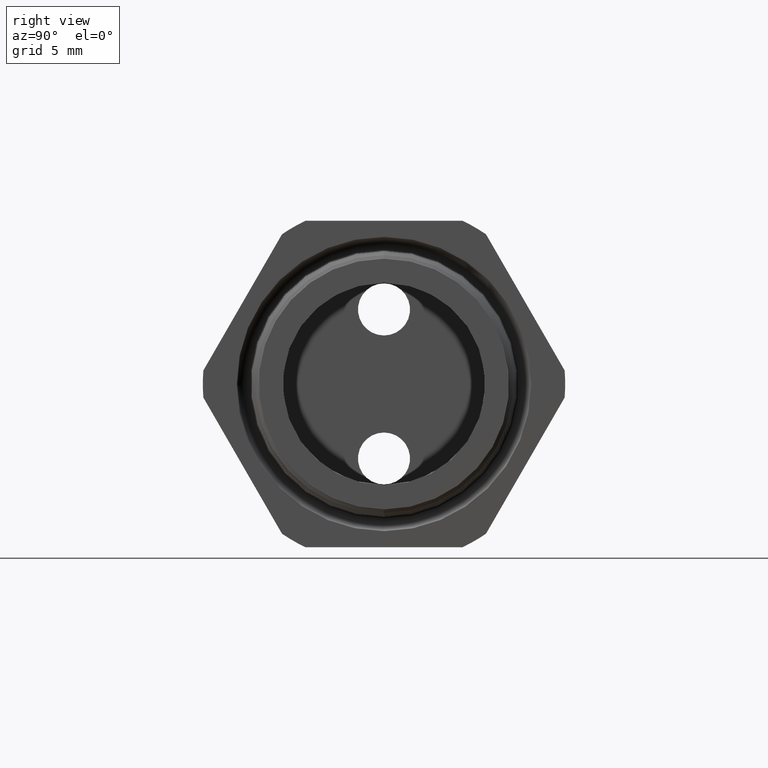
[diagram: clean part render]
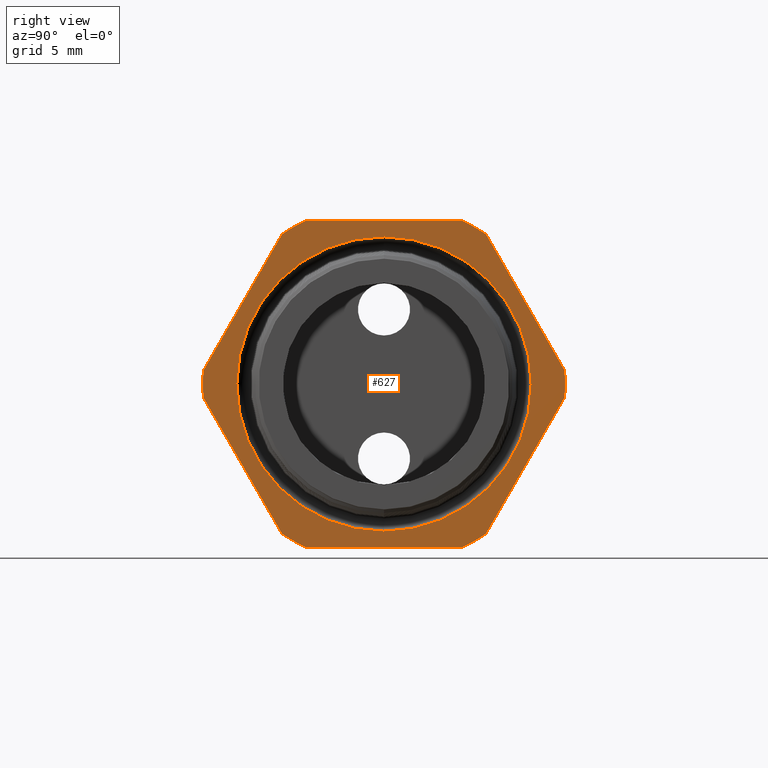
[diagram: same view with one face highlighted and labeled with its STEP entity id]
A machine part, right view. The second image highlights one B-rep face of the part: STEP entity #627.
In plain terms, the highlighted planar face has unit normal (1, 0, 0).
Its self-contained STEP definition (entity closure, byte-faithful):
#273 = ORIENTED_EDGE ( 'NONE', *, *, #672, .T. ) ;
#602 = EDGE_CURVE ( 'NONE', #682, #603, #3035, .T. ) ;
#603 = VERTEX_POINT ( 'NONE', #3081 ) ;
#604 = ORIENTED_EDGE ( 'NONE', *, *, #659, .T. ) ;
#605 = ORIENTED_EDGE ( 'NONE', *, *, #1471, .F. ) ;
#606 = ORIENTED_EDGE ( 'NONE', *, *, #607, .T. ) ;
#607 = EDGE_CURVE ( 'NONE', #608, #609, #3080, .T. ) ;
#608 = VERTEX_POINT ( 'NONE', #3076 ) ;
#609 = VERTEX_POINT ( 'NONE', #3075 ) ;
#610 = ORIENTED_EDGE ( 'NONE', *, *, #611, .T. ) ;
#611 = EDGE_CURVE ( 'NONE', #609, #612, #3074, .T. ) ;
#612 = VERTEX_POINT ( 'NONE', #3069 ) ;
#613 = ORIENTED_EDGE ( 'NONE', *, *, #614, .T. ) ;
#614 = EDGE_CURVE ( 'NONE', #612, #615, #3068, .T. ) ;
#615 = VERTEX_POINT ( 'NONE', #3064 ) ;
#616 = ORIENTED_EDGE ( 'NONE', *, *, #617, .T. ) ;
#617 = EDGE_CURVE ( 'NONE', #615, #618, #3063, .T. ) ;
#618 = VERTEX_POINT ( 'NONE', #3058 ) ;
#627 = ADVANCED_FACE ( 'NONE', ( #3096, #3095 ), #3094, .T. ) ;
#628 = EDGE_LOOP ( 'NONE', ( #629, #605 ) ) ;
#629 = ORIENTED_EDGE ( 'NONE', *, *, #630, .F. ) ;
#630 = EDGE_CURVE ( 'NONE', #1587, #1586, #3088, .T. ) ;
#631 = EDGE_LOOP ( 'NONE', ( #606, #610, #613, #616, #273, #674, #677, #680, #683, #604, #661, #664 ) ) ;
#659 = EDGE_CURVE ( 'NONE', #603, #660, #3152, .T. ) ;
#660 = VERTEX_POINT ( 'NONE', #3208 ) ;
#661 = ORIENTED_EDGE ( 'NONE', *, *, #662, .T. ) ;
#662 = EDGE_CURVE ( 'NONE', #660, #663, #3207, .T. ) ;
#663 = VERTEX_POINT ( 'NONE', #3203 ) ;
#664 = ORIENTED_EDGE ( 'NONE', *, *, #665, .T. ) ;
#665 = EDGE_CURVE ( 'NONE', #663, #608, #3201, .T. ) ;
#672 = EDGE_CURVE ( 'NONE', #618, #673, #3186, .T. ) ;
#673 = VERTEX_POINT ( 'NONE', #3182 ) ;
#674 = ORIENTED_EDGE ( 'NONE', *, *, #675, .T. ) ;
#675 = EDGE_CURVE ( 'NONE', #673, #676, #3244, .T. ) ;
#676 = VERTEX_POINT ( 'NONE', #3239 ) ;
#677 = ORIENTED_EDGE ( 'NONE', *, *, #678, .T. ) ;
#678 = EDGE_CURVE ( 'NONE', #676, #679, #3238, .T. ) ;
#679 = VERTEX_POINT ( 'NONE', #3234 ) ;
#680 = ORIENTED_EDGE ( 'NONE', *, *, #681, .T. ) ;
#681 = EDGE_CURVE ( 'NONE', #679, #682, #3233, .T. ) ;
#682 = VERTEX_POINT ( 'NONE', #3228 ) ;
#683 = ORIENTED_EDGE ( 'NONE', *, *, #602, .T. ) ;
#1471 = EDGE_CURVE ( 'NONE', #1586, #1587, #4410, .T. ) ;
#1586 = VERTEX_POINT ( 'NONE', #4624 ) ;
#1587 = VERTEX_POINT ( 'NONE', #4623 ) ;
#3033 = VECTOR ( 'NONE', #3082, 39.37007874015747400 ) ;
#3034 = CARTESIAN_POINT ( 'NONE',  ( -0.3100000000000000000, -0.1720319397786861700, -0.6420319397786863300 ) ) ;
#3035 = LINE ( 'NONE', #3034, #3033 ) ;
#3058 = CARTESIAN_POINT ( 'NONE',  ( -0.3100000000000000000, 0.2264307620443832800, 0.4699999999999999200 ) ) ;
#3059 = DIRECTION ( 'NONE',  ( 0.0000000000000000000, 0.0000000000000000000, -1.000000000000000000 ) ) ;
#3060 = DIRECTION ( 'NONE',  ( 1.000000000000000000, 0.0000000000000000000, 0.0000000000000000000 ) ) ;
#3061 = CARTESIAN_POINT ( 'NONE',  ( -0.3100000000000000000, 0.0000000000000000000, 0.0000000000000000000 ) ) ;
#3062 = AXIS2_PLACEMENT_3D ( 'NONE', #3061, #3060, #3059 ) ;
#3063 = CIRCLE ( 'NONE', #3062, 0.5217000000000000500 ) ;
#3064 = CARTESIAN_POINT ( 'NONE',  ( -0.3100000000000000000, 0.2938165587564947600, 0.4310947921287048800 ) ) ;
#3065 = DIRECTION ( 'NONE',  ( 0.0000000000000000000, -0.5000000000000001100, 0.8660254037844384900 ) ) ;
#3066 = VECTOR ( 'NONE', #3065, 39.37007874015748900 ) ;
#3067 = CARTESIAN_POINT ( 'NONE',  ( -0.3100000000000000000, 0.6420319397786862200, -0.1720319397786861700 ) ) ;
#3068 = LINE ( 'NONE', #3067, #3066 ) ;
#3069 = CARTESIAN_POINT ( 'NONE',  ( -0.3100000000000000000, 0.5202473208008776600, 0.03890520787129531800 ) ) ;
#3070 = DIRECTION ( 'NONE',  ( 0.0000000000000000000, 0.0000000000000000000, -1.000000000000000000 ) ) ;
#3071 = DIRECTION ( 'NONE',  ( 1.000000000000000000, 0.0000000000000000000, 0.0000000000000000000 ) ) ;
#3072 = CARTESIAN_POINT ( 'NONE',  ( -0.3100000000000000000, 0.0000000000000000000, 0.0000000000000000000 ) ) ;
#3073 = AXIS2_PLACEMENT_3D ( 'NONE', #3072, #3071, #3070 ) ;
#3074 = CIRCLE ( 'NONE', #3073, 0.5217000000000000500 ) ;
#3075 = CARTESIAN_POINT ( 'NONE',  ( -0.3100000000000000000, 0.5202473208008777700, -0.03890520787129494300 ) ) ;
#3076 = CARTESIAN_POINT ( 'NONE',  ( -0.3100000000000000000, 0.2938165587564948700, -0.4310947921287048800 ) ) ;
#3077 = DIRECTION ( 'NONE',  ( 0.0000000000000000000, 0.4999999999999998300, 0.8660254037844388200 ) ) ;
#3078 = VECTOR ( 'NONE', #3077, 39.37007874015748100 ) ;
#3079 = CARTESIAN_POINT ( 'NONE',  ( -0.3100000000000000000, 0.6420319397786861100, 0.1720319397786860800 ) ) ;
#3080 = LINE ( 'NONE', #3079, #3078 ) ;
#3081 = CARTESIAN_POINT ( 'NONE',  ( -0.3100000000000000000, -0.2938165587564942600, -0.4310947921287053300 ) ) ;
#3082 = DIRECTION ( 'NONE',  ( 0.0000000000000000000, 0.5000000000000002200, -0.8660254037844386000 ) ) ;
#3088 = CIRCLE ( 'NONE', #3150, 0.4238480351359016900 ) ;
#3090 = DIRECTION ( 'NONE',  ( 0.0000000000000000000, 0.0000000000000000000, -1.000000000000000000 ) ) ;
#3091 = DIRECTION ( 'NONE',  ( 1.000000000000000000, 0.0000000000000000000, 0.0000000000000000000 ) ) ;
#3092 = CARTESIAN_POINT ( 'NONE',  ( -0.3100000000000000000, 0.9399999999999999500, 0.0000000000000000000 ) ) ;
#3093 = AXIS2_PLACEMENT_3D ( 'NONE', #3092, #3091, #3090 ) ;
#3094 = PLANE ( 'NONE',  #3093 ) ;
#3095 = FACE_OUTER_BOUND ( 'NONE', #631, .T. ) ;
#3096 = FACE_BOUND ( 'NONE', #628, .T. ) ;
#3147 = DIRECTION ( 'NONE',  ( 0.0000000000000000000, 0.0000000000000000000, -1.000000000000000000 ) ) ;
#3148 = DIRECTION ( 'NONE',  ( 1.000000000000000000, 0.0000000000000000000, 0.0000000000000000000 ) ) ;
#3149 = CARTESIAN_POINT ( 'NONE',  ( -0.3100000000000000000, 0.0000000000000000000, 0.0000000000000000000 ) ) ;
#3150 = AXIS2_PLACEMENT_3D ( 'NONE', #3149, #3148, #3147 ) ;
#3151 = AXIS2_PLACEMENT_3D ( 'NONE', #3157, #3210, #3209 ) ;
#3152 = CIRCLE ( 'NONE', #3151, 0.5217000000000000500 ) ;
#3157 = CARTESIAN_POINT ( 'NONE',  ( -0.3100000000000000000, 0.0000000000000000000, 0.0000000000000000000 ) ) ;
#3182 = CARTESIAN_POINT ( 'NONE',  ( -0.3100000000000000000, -0.2264307620443835300, 0.4699999999999997000 ) ) ;
#3183 = DIRECTION ( 'NONE',  ( 0.0000000000000000000, -1.000000000000000000, 0.0000000000000000000 ) ) ;
#3184 = VECTOR ( 'NONE', #3183, 39.37007874015748100 ) ;
#3185 = CARTESIAN_POINT ( 'NONE',  ( -0.3100000000000000000, 0.9399999999999999500, 0.4699999999999999200 ) ) ;
#3186 = LINE ( 'NONE', #3185, #3184 ) ;
#3197 = DIRECTION ( 'NONE',  ( 0.0000000000000000000, 0.0000000000000000000, -1.000000000000000000 ) ) ;
#3198 = DIRECTION ( 'NONE',  ( 1.000000000000000000, 0.0000000000000000000, 0.0000000000000000000 ) ) ;
#3199 = CARTESIAN_POINT ( 'NONE',  ( -0.3100000000000000000, 0.0000000000000000000, 0.0000000000000000000 ) ) ;
#3200 = AXIS2_PLACEMENT_3D ( 'NONE', #3199, #3198, #3197 ) ;
#3201 = CIRCLE ( 'NONE', #3200, 0.5217000000000000500 ) ;
#3203 = CARTESIAN_POINT ( 'NONE',  ( -0.3100000000000000000, 0.2264307620443831200, -0.4700000000000000300 ) ) ;
#3204 = DIRECTION ( 'NONE',  ( 0.0000000000000000000, 1.000000000000000000, 0.0000000000000000000 ) ) ;
#3205 = VECTOR ( 'NONE', #3204, 39.37007874015748100 ) ;
#3206 = CARTESIAN_POINT ( 'NONE',  ( -0.3100000000000000000, 0.9399999999999999500, -0.4700000000000000300 ) ) ;
#3207 = LINE ( 'NONE', #3206, #3205 ) ;
#3208 = CARTESIAN_POINT ( 'NONE',  ( -0.3100000000000000000, -0.2264307620443830900, -0.4700000000000000300 ) ) ;
#3209 = DIRECTION ( 'NONE',  ( 0.0000000000000000000, 0.0000000000000000000, -1.000000000000000000 ) ) ;
#3210 = DIRECTION ( 'NONE',  ( 1.000000000000000000, 0.0000000000000000000, 0.0000000000000000000 ) ) ;
#3228 = CARTESIAN_POINT ( 'NONE',  ( -0.3100000000000000000, -0.5202473208008777700, -0.03890520787129495000 ) ) ;
#3229 = DIRECTION ( 'NONE',  ( 0.0000000000000000000, 0.0000000000000000000, -1.000000000000000000 ) ) ;
#3230 = DIRECTION ( 'NONE',  ( 1.000000000000000000, 0.0000000000000000000, 0.0000000000000000000 ) ) ;
#3231 = CARTESIAN_POINT ( 'NONE',  ( -0.3100000000000000000, 0.0000000000000000000, 0.0000000000000000000 ) ) ;
#3232 = AXIS2_PLACEMENT_3D ( 'NONE', #3231, #3230, #3229 ) ;
#3233 = CIRCLE ( 'NONE', #3232, 0.5217000000000000500 ) ;
#3234 = CARTESIAN_POINT ( 'NONE',  ( -0.3100000000000000000, -0.5202473208008777700, 0.03890520787129464500 ) ) ;
#3235 = DIRECTION ( 'NONE',  ( 0.0000000000000000000, -0.4999999999999998300, -0.8660254037844388200 ) ) ;
#3236 = VECTOR ( 'NONE', #3235, 39.37007874015748100 ) ;
#3237 = CARTESIAN_POINT ( 'NONE',  ( -0.3100000000000000000, -0.1720319397786862800, 0.6420319397786858900 ) ) ;
#3238 = LINE ( 'NONE', #3237, #3236 ) ;
#3239 = CARTESIAN_POINT ( 'NONE',  ( -0.3100000000000000000, -0.2938165587564945900, 0.4310947921287050500 ) ) ;
#3240 = DIRECTION ( 'NONE',  ( 0.0000000000000000000, 0.0000000000000000000, -1.000000000000000000 ) ) ;
#3241 = DIRECTION ( 'NONE',  ( 1.000000000000000000, 0.0000000000000000000, 0.0000000000000000000 ) ) ;
#3242 = CARTESIAN_POINT ( 'NONE',  ( -0.3100000000000000000, 0.0000000000000000000, 0.0000000000000000000 ) ) ;
#3243 = AXIS2_PLACEMENT_3D ( 'NONE', #3242, #3241, #3240 ) ;
#3244 = CIRCLE ( 'NONE', #3243, 0.5217000000000000500 ) ;
#4406 = DIRECTION ( 'NONE',  ( 0.0000000000000000000, 0.0000000000000000000, -1.000000000000000000 ) ) ;
#4407 = DIRECTION ( 'NONE',  ( 1.000000000000000000, 0.0000000000000000000, 0.0000000000000000000 ) ) ;
#4408 = CARTESIAN_POINT ( 'NONE',  ( -0.3100000000000000000, 0.0000000000000000000, 0.0000000000000000000 ) ) ;
#4409 = AXIS2_PLACEMENT_3D ( 'NONE', #4408, #4407, #4406 ) ;
#4410 = CIRCLE ( 'NONE', #4409, 0.4238480351359016900 ) ;
#4623 = CARTESIAN_POINT ( 'NONE',  ( -0.3100000000000000000, 0.0000000000000000000, -0.4238480351359016900 ) ) ;
#4624 = CARTESIAN_POINT ( 'NONE',  ( -0.3100000000000000000, 5.190641395540770100E-017, 0.4238480351359016900 ) ) ;